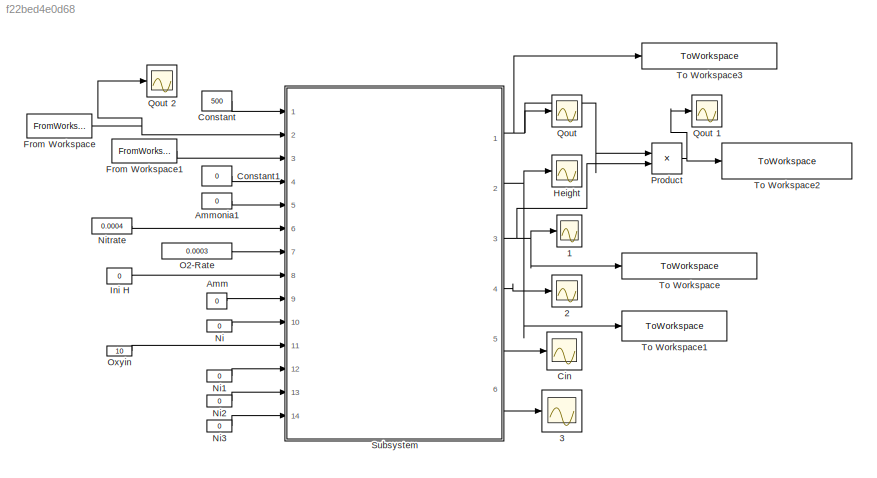
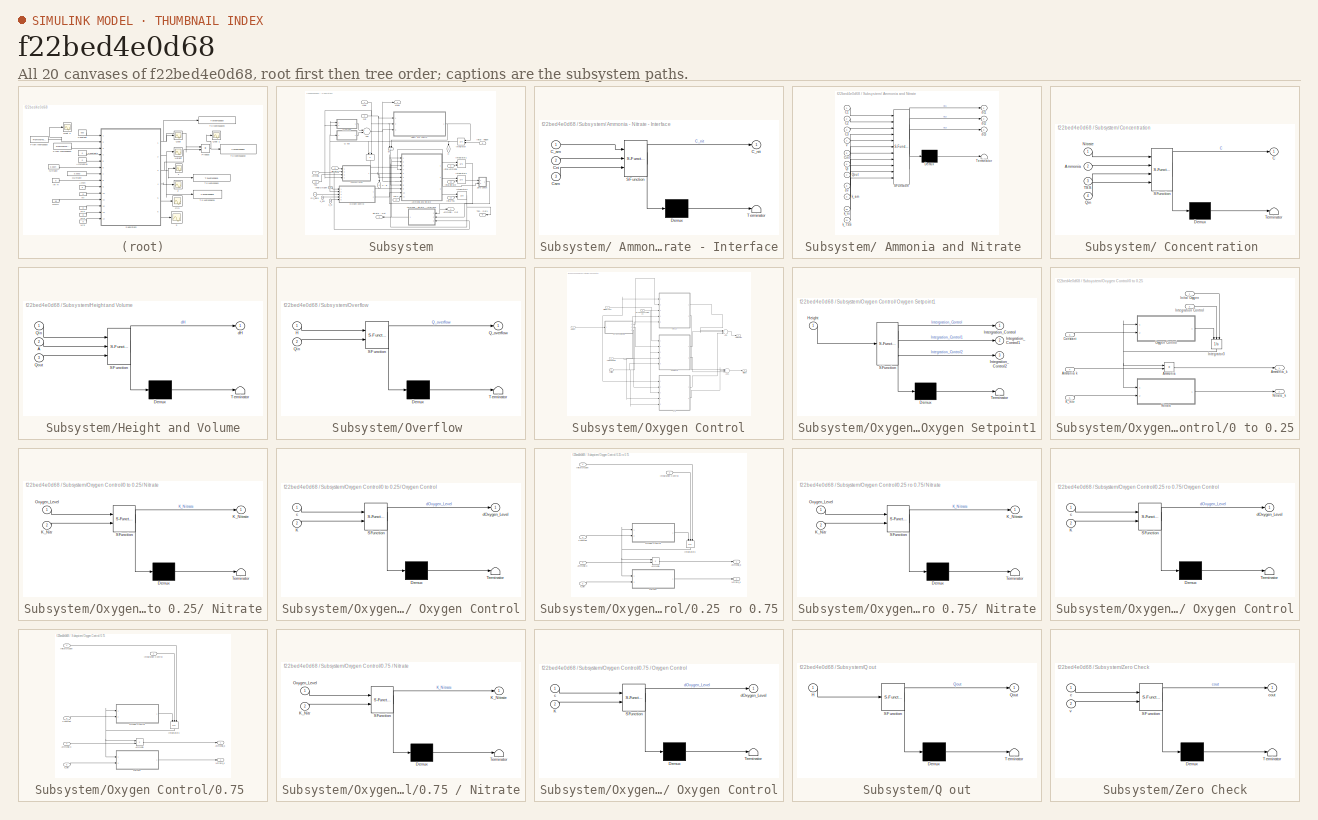
[diagram: thumbnail index - all 20 canvases of the model, root first then tree order]
MODEL slx_f22bed4e0d68
KIND model
CONFIG AbsTol = auto
CONFIG FixedStep = 1
CONFIG MaxStep = auto
CONFIG MinStep = auto
CONFIG RelTol = 1e-3
CONFIG SampleTimeConstraint = Unconstrained
CONFIG Solver = ode8
CONFIG SolverMode = Auto
CONFIG SolverName = ode8
CONFIG StartTime = 0.0
CONFIG StopTime = 800
BLOCK [Constant]  Amm
  Value = 0
BLOCK [Scope] 1
  Ports = [1]
  ScopeSpecificationString = Simulink.scopes.TimeScopeBlockCfg('CurrentConfiguration', extmgr.ConfigurationSet(extmgr.Configuration('Core','General UI',true),extmgr.Configuration('Core','Source UI',true),extmgr.Configuration('Sources','WiredSimulink',true,'DataLoggingVariableName','ScopeData1','DataLoggingLimitDataPoints',true,'DataLoggingSaveFormat','Array','DataLoggingDecimation','1','DataLoggingDecimateData',true),extmgr.C...<+1532ch>
BLOCK [Scope] 2
  Ports = [1]
  ScopeSpecificationString = Simulink.scopes.TimeScopeBlockCfg('CurrentConfiguration', extmgr.ConfigurationSet(extmgr.Configuration('Core','General UI',true),extmgr.Configuration('Core','Source UI',true),extmgr.Configuration('Sources','WiredSimulink',true,'DataLoggingVariableName','ScopeData2','DataLoggingLimitDataPoints',true,'DataLoggingSaveFormat','Array','DataLoggingDecimation','1','DataLoggingDecimateData',true),extmgr.C...<+1518ch>
BLOCK [Scope] 3
  Ports = [1]
  ScopeSpecificationString = Simulink.scopes.TimeScopeBlockCfg('CurrentConfiguration', extmgr.ConfigurationSet(extmgr.Configuration('Core','General UI',true),extmgr.Configuration('Core','Source UI',true),extmgr.Configuration('Sources','WiredSimulink',true,'DataLoggingVariableName','ScopeData1','DataLoggingLimitDataPoints',true,'DataLoggingSaveFormat','Array','DataLoggingDecimation','1','DataLoggingDecimateData',true),extmgr.C...<+1522ch>
BLOCK [Constant] Ammonia1
  Value = 0
BLOCK [Scope] Cin
  Ports = [1]
  ScopeSpecificationString = Simulink.scopes.TimeScopeBlockCfg('CurrentConfiguration', extmgr.ConfigurationSet(extmgr.Configuration('Core','General UI',true),extmgr.Configuration('Core','Source UI',true),extmgr.Configuration('Sources','WiredSimulink',true,'DataLoggingVariableName','ScopeData6'),extmgr.Configuration('Visuals','Time Domain',true,'SerializedDisplays',{struct('MinYLimReal','-1.39343','MaxYLimReal','12.54084','YLa...<+1460ch>
BLOCK [Constant] Constant
  Value = 500
BLOCK [Constant] Constant1
  Value = 0
BLOCK [FromWorkspace] From Workspace
  SampleTime = 0
  VariableName = Flow
  ZeroCross = on
BLOCK [FromWorkspace] From Workspace1
  SampleTime = 0
  VariableName = Pollutant
  ZeroCross = on
BLOCK [Scope] Height
  Ports = [1]
  ScopeSpecificationString = Simulink.scopes.TimeScopeBlockCfg('CurrentConfiguration', extmgr.ConfigurationSet(extmgr.Configuration('Core','General UI',true),extmgr.Configuration('Core','Source UI',true),extmgr.Configuration('Sources','WiredSimulink',true,'DataLoggingVariableName','ScopeData3','DataLoggingLimitDataPoints',true,'DataLoggingSaveFormat','Array','DataLoggingDecimation','1','DataLoggingDecimateData',true),extmgr.C...<+1521ch>
BLOCK [Constant] Ini H 
  Value = 0
BLOCK [Constant] Ni
  Value = 0
BLOCK [Constant] Ni1
  Value = 0
BLOCK [Constant] Ni2
  Value = 0
BLOCK [Constant] Ni3
  Value = 0
BLOCK [Constant] Nitrate 
  Value = 0.0004
BLOCK [Constant] O2-Rate
  Value = 0.0003
BLOCK [Constant] Oxyin 
  Value = 10
BLOCK [Product] Product
  InputSameDT = off
  OutDataTypeStr = Inherit: Inherit via internal rule
  Ports = [2, 1]
  RndMeth = Floor
  SaturateOnIntegerOverflow = off
BLOCK [Scope] Qout 
  Ports = [1]
  ScopeSpecificationString = Simulink.scopes.TimeScopeBlockCfg('CurrentConfiguration', extmgr.ConfigurationSet(extmgr.Configuration('Core','General UI',true),extmgr.Configuration('Core','Source UI',true),extmgr.Configuration('Sources','WiredSimulink',true,'DataLoggingVariableName','ScopeData2','DataLoggingLimitDataPoints',true,'DataLoggingSaveFormat','Array','DataLoggingDecimation','1','DataLoggingDecimateData',true),extmgr.C...<+1503ch>
BLOCK [Scope] Qout 1
  Ports = [1]
  ScopeSpecificationString = Simulink.scopes.TimeScopeBlockCfg('CurrentConfiguration', extmgr.ConfigurationSet(extmgr.Configuration('Core','General UI',true),extmgr.Configuration('Core','Source UI',true),extmgr.Configuration('Sources','WiredSimulink',true,'DataLoggingVariableName','ScopeData1','DataLoggingLimitDataPoints',true,'DataLoggingSaveFormat','Array','DataLoggingDecimation','1','DataLoggingDecimateData',true),extmgr.C...<+1519ch>
BLOCK [Scope] Qout 2
  Ports = [1]
  ScopeSpecificationString = Simulink.scopes.TimeScopeBlockCfg('CurrentConfiguration', extmgr.ConfigurationSet(extmgr.Configuration('Core','General UI',true),extmgr.Configuration('Core','Source UI',true),extmgr.Configuration('Sources','WiredSimulink',true,'DataLoggingVariableName','ScopeData1','DataLoggingLimitDataPoints',true,'DataLoggingSaveFormat','Array','DataLoggingDecimation','1','DataLoggingDecimateData',true),extmgr.C...<+1526ch>
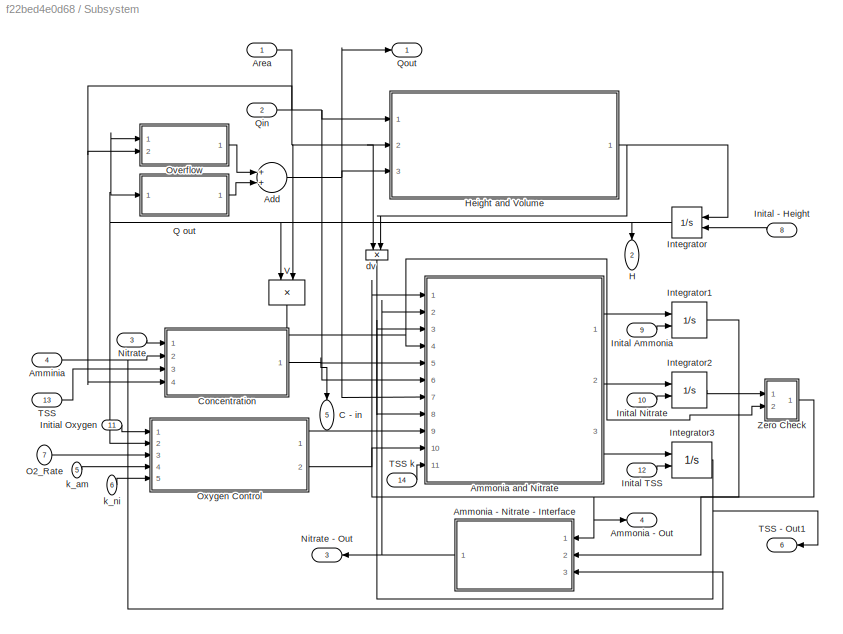
BLOCK [SubSystem] Subsystem
  Ports = [14, 6]
  RequestExecContextInheritance = off
  Variant = off
BLOCK [SubSystem] Subsystem/ Ammonia - Nitrate - Interface
  ErrorFcn = Stateflow.Translate.translate
  PermitHierarchicalResolution = ExplicitOnly
  Ports = [3, 1]
  RequestExecContextInheritance = off
  SFBlockType = MATLAB Function
  TreatAsAtomicUnit = on
  Variant = off
BLOCK [Demux] Subsystem/ Ammonia - Nitrate - Interface/ Demux 
  Outputs = 1
  Ports = [1, 1]
BLOCK [S-Function] Subsystem/ Ammonia - Nitrate - Interface/ SFunction 
  EnableBusSupport = on
  FunctionName = sf_sfun
  PortCounts = [3 2]
  Ports = [3, 2]
  SFunctionDeploymentMode = off
  Tag = Stateflow S-Function Local_Partialcontrol 4
BLOCK [Terminator] Subsystem/ Ammonia - Nitrate - Interface/ Terminator 
BLOCK [Inport] Subsystem/ Ammonia - Nitrate - Interface/C_am
  IconDisplay = Port number
BLOCK [Outport] Subsystem/ Ammonia - Nitrate - Interface/C_nit
  IconDisplay = Port number
BLOCK [Inport] Subsystem/ Ammonia - Nitrate - Interface/Cam
  IconDisplay = Port number
  Port = 3
BLOCK [Inport] Subsystem/ Ammonia - Nitrate - Interface/Cni
  IconDisplay = Port number
  Port = 2
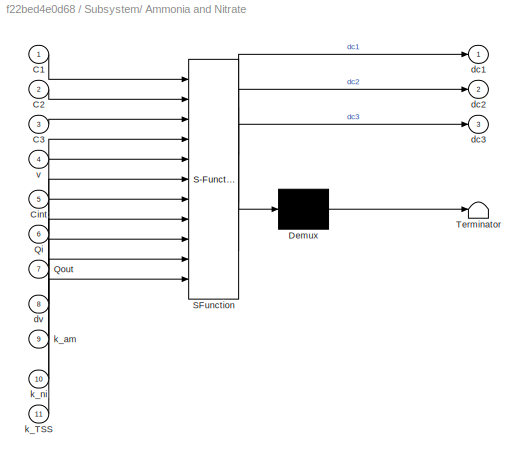
BLOCK [SubSystem] Subsystem/ Ammonia and Nitrate 
  ErrorFcn = Stateflow.Translate.translate
  PermitHierarchicalResolution = ExplicitOnly
  Ports = [11, 3]
  RequestExecContextInheritance = off
  SFBlockType = MATLAB Function
  TreatAsAtomicUnit = on
  Variant = off
BLOCK [Demux] Subsystem/ Ammonia and Nitrate / Demux 
  Outputs = 1
  Ports = [1, 1]
BLOCK [S-Function] Subsystem/ Ammonia and Nitrate / SFunction 
  EnableBusSupport = on
  FunctionName = sf_sfun
  PortCounts = [11 4]
  Ports = [11, 4]
  SFunctionDeploymentMode = off
  Tag = Stateflow S-Function Local_Partialcontrol 14
BLOCK [Terminator] Subsystem/ Ammonia and Nitrate / Terminator 
BLOCK [Inport] Subsystem/ Ammonia and Nitrate /C1
  IconDisplay = Port number
BLOCK [Inport] Subsystem/ Ammonia and Nitrate /C2
  IconDisplay = Port number
  Port = 2
BLOCK [Inport] Subsystem/ Ammonia and Nitrate /C3
  IconDisplay = Port number
  Port = 3
BLOCK [Inport] Subsystem/ Ammonia and Nitrate /Cint
  IconDisplay = Port number
  Port = 5
BLOCK [Inport] Subsystem/ Ammonia and Nitrate /Qi
  IconDisplay = Port number
  Port = 6
BLOCK [Inport] Subsystem/ Ammonia and Nitrate /Qout
  IconDisplay = Port number
  Port = 7
BLOCK [Outport] Subsystem/ Ammonia and Nitrate /dc1
  IconDisplay = Port number
BLOCK [Outport] Subsystem/ Ammonia and Nitrate /dc2
  IconDisplay = Port number
  Port = 2
BLOCK [Outport] Subsystem/ Ammonia and Nitrate /dc3
  IconDisplay = Port number
  Port = 3
BLOCK [Inport] Subsystem/ Ammonia and Nitrate /dv
  IconDisplay = Port number
  Port = 8
BLOCK [Inport] Subsystem/ Ammonia and Nitrate /k_TSS
  IconDisplay = Port number
  Port = 11
BLOCK [Inport] Subsystem/ Ammonia and Nitrate /k_am
  IconDisplay = Port number
  Port = 9
BLOCK [Inport] Subsystem/ Ammonia and Nitrate /k_ni
  IconDisplay = Port number
  Port = 10
BLOCK [Inport] Subsystem/ Ammonia and Nitrate /v
  IconDisplay = Port number
  Port = 4
BLOCK [SubSystem] Subsystem/ Concentration 
  ErrorFcn = Stateflow.Translate.translate
  PermitHierarchicalResolution = ExplicitOnly
  Ports = [4, 1]
  RequestExecContextInheritance = off
  SFBlockType = MATLAB Function
  TreatAsAtomicUnit = on
  Variant = off
BLOCK [Demux] Subsystem/ Concentration / Demux 
  Outputs = 1
  Ports = [1, 1]
BLOCK [S-Function] Subsystem/ Concentration / SFunction 
  EnableBusSupport = on
  FunctionName = sf_sfun
  PortCounts = [4 2]
  Ports = [4, 2]
  SFunctionDeploymentMode = off
  Tag = Stateflow S-Function Local_Partialcontrol 5
BLOCK [Terminator] Subsystem/ Concentration / Terminator 
BLOCK [Inport] Subsystem/ Concentration /Ammonia
  IconDisplay = Port number
  Port = 2
BLOCK [Outport] Subsystem/ Concentration /C
  IconDisplay = Port number
BLOCK [Inport] Subsystem/ Concentration /Nitrate
  IconDisplay = Port number
BLOCK [Inport] Subsystem/ Concentration /Qin
  IconDisplay = Port number
  Port = 4
BLOCK [Inport] Subsystem/ Concentration /TSS
  IconDisplay = Port number
  Port = 3
BLOCK [Sum] Subsystem/Add
  InputSameDT = off
  OutDataTypeStr = Inherit: Inherit via internal rule
  Ports = [2, 1]
  SaturateOnIntegerOverflow = off
BLOCK [Inport] Subsystem/Amminia
  IconDisplay = Port number
  Port = 4
BLOCK [Outport] Subsystem/Ammonia - Out
  IconDisplay = Port number
  Port = 4
BLOCK [Inport] Subsystem/Area
  IconDisplay = Port number
BLOCK [Outport] Subsystem/C - in 
  IconDisplay = Port number
  Port = 5
BLOCK [Outport] Subsystem/H
  IconDisplay = Port number
  Port = 2
BLOCK [SubSystem] Subsystem/Height and Volume
  ErrorFcn = Stateflow.Translate.translate
  PermitHierarchicalResolution = ExplicitOnly
  Ports = [3, 1]
  RequestExecContextInheritance = off
  SFBlockType = MATLAB Function
  TreatAsAtomicUnit = on
  Variant = off
BLOCK [Demux] Subsystem/Height and Volume/ Demux 
  Outputs = 1
  Ports = [1, 1]
BLOCK [S-Function] Subsystem/Height and Volume/ SFunction 
  EnableBusSupport = on
  FunctionName = sf_sfun
  PortCounts = [3 2]
  Ports = [3, 2]
  SFunctionDeploymentMode = off
  Tag = Stateflow S-Function Local_Partialcontrol 16
BLOCK [Terminator] Subsystem/Height and Volume/ Terminator 
BLOCK [Inport] Subsystem/Height and Volume/A
  IconDisplay = Port number
  Port = 2
BLOCK [Inport] Subsystem/Height and Volume/Qin
  IconDisplay = Port number
BLOCK [Inport] Subsystem/Height and Volume/Qout
  IconDisplay = Port number
  Port = 3
BLOCK [Outport] Subsystem/Height and Volume/dH
  IconDisplay = Port number
BLOCK [Inport] Subsystem/Inital - Height
  IconDisplay = Port number
  Port = 8
BLOCK [Inport] Subsystem/Inital Ammonia
  IconDisplay = Port number
  Port = 9
BLOCK [Inport] Subsystem/Inital Nitrate
  IconDisplay = Port number
  Port = 10
BLOCK [Inport] Subsystem/Inital TSS
  IconDisplay = Port number
  Port = 12
BLOCK [Inport] Subsystem/Initial Oxygen
  IconDisplay = Port number
  Port = 11
BLOCK [Integrator] Subsystem/Integrator
  InitialCondition = 10
  InitialConditionSource = external
  LimitOutput = on
  LowerSaturationLimit = 0
  Ports = [2, 1]
BLOCK [Integrator] Subsystem/Integrator1
  InitialConditionSource = external
  LimitOutput = on
  LowerSaturationLimit = 0
  Ports = [2, 1]
BLOCK [Integrator] Subsystem/Integrator2
  InitialConditionSource = external
  LimitOutput = on
  LowerSaturationLimit = 0
  Ports = [2, 1]
BLOCK [Integrator] Subsystem/Integrator3
  InitialConditionSource = external
  LimitOutput = on
  LowerSaturationLimit = 0
  Ports = [2, 1]
BLOCK [Inport] Subsystem/Nitrate
  IconDisplay = Port number
  Port = 3
BLOCK [Outport] Subsystem/Nitrate - Out
  IconDisplay = Port number
  Port = 3
BLOCK [Inport] Subsystem/O2_Rate 
  IconDisplay = Port number
  Port = 7
BLOCK [SubSystem] Subsystem/Overflow 
  ErrorFcn = Stateflow.Translate.translate
  PermitHierarchicalResolution = ExplicitOnly
  Ports = [2, 1]
  RequestExecContextInheritance = off
  SFBlockType = MATLAB Function
  TreatAsAtomicUnit = on
  Variant = off
BLOCK [Demux] Subsystem/Overflow / Demux 
  Outputs = 1
  Ports = [1, 1]
BLOCK [S-Function] Subsystem/Overflow / SFunction 
  EnableBusSupport = on
  FunctionName = sf_sfun
  PortCounts = [2 2]
  Ports = [2, 2]
  SFunctionDeploymentMode = off
  Tag = Stateflow S-Function Local_Partialcontrol 7
BLOCK [Terminator] Subsystem/Overflow / Terminator 
BLOCK [Inport] Subsystem/Overflow /H
  IconDisplay = Port number
BLOCK [Outport] Subsystem/Overflow /Q_overflow
  IconDisplay = Port number
BLOCK [Inport] Subsystem/Overflow /Qin
  IconDisplay = Port number
  Port = 2
BLOCK [SubSystem] Subsystem/Oxygen Control
  Ports = [5, 2]
  RequestExecContextInheritance = off
  Variant = off
BLOCK [SubSystem] Subsystem/Oxygen Control/ Oxygen Setpoint1
  ErrorFcn = Stateflow.Translate.translate
  PermitHierarchicalResolution = ExplicitOnly
  Ports = [1, 3]
  RequestExecContextInheritance = off
  SFBlockType = MATLAB Function
  TreatAsAtomicUnit = on
  Variant = off
BLOCK [Demux] Subsystem/Oxygen Control/ Oxygen Setpoint1/ Demux 
  Outputs = 1
  Ports = [1, 1]
BLOCK [S-Function] Subsystem/Oxygen Control/ Oxygen Setpoint1/ SFunction 
  EnableBusSupport = on
  FunctionName = sf_sfun
  PortCounts = [1 4]
  Ports = [1, 4]
  SFunctionDeploymentMode = off
  Tag = Stateflow S-Function Local_Partialcontrol 8
BLOCK [Terminator] Subsystem/Oxygen Control/ Oxygen Setpoint1/ Terminator 
BLOCK [Inport] Subsystem/Oxygen Control/ Oxygen Setpoint1/Height
  IconDisplay = Port number
BLOCK [Outport] Subsystem/Oxygen Control/ Oxygen Setpoint1/Integration_Control1
  IconDisplay = Port number
  Port = 2
BLOCK [Outport] Subsystem/Oxygen Control/ Oxygen Setpoint1/Integration_Control2
  IconDisplay = Port number
  Port = 3
BLOCK [Outport] Subsystem/Oxygen Control/ Oxygen Setpoint1/Intergration_Control
  IconDisplay = Port number
BLOCK [SubSystem] Subsystem/Oxygen Control/0 to 0.25
  Ports = [5, 2]
  RequestExecContextInheritance = off
  Variant = off
BLOCK [SubSystem] Subsystem/Oxygen Control/0 to 0.25/ Nitrate
  ErrorFcn = Stateflow.Translate.translate
  PermitHierarchicalResolution = ExplicitOnly
  Ports = [2, 1]
  RequestExecContextInheritance = off
  SFBlockType = MATLAB Function
  TreatAsAtomicUnit = on
  Variant = off
BLOCK [Demux] Subsystem/Oxygen Control/0 to 0.25/ Nitrate/ Demux 
  Outputs = 1
  Ports = [1, 1]
BLOCK [S-Function] Subsystem/Oxygen Control/0 to 0.25/ Nitrate/ SFunction 
  EnableBusSupport = on
  FunctionName = sf_sfun
  PortCounts = [2 2]
  Ports = [2, 2]
  SFunctionDeploymentMode = off
  Tag = Stateflow S-Function Local_Partialcontrol 9
BLOCK [Terminator] Subsystem/Oxygen Control/0 to 0.25/ Nitrate/ Terminator 
BLOCK [Inport] Subsystem/Oxygen Control/0 to 0.25/ Nitrate/K_Nitr
  IconDisplay = Port number
  Port = 2
BLOCK [Outport] Subsystem/Oxygen Control/0 to 0.25/ Nitrate/K_Nitrate
  IconDisplay = Port number
BLOCK [Inport] Subsystem/Oxygen Control/0 to 0.25/ Nitrate/Oxygen_Level
  IconDisplay = Port number
BLOCK [SubSystem] Subsystem/Oxygen Control/0 to 0.25/ Oxygen Control
  ErrorFcn = Stateflow.Translate.translate
  PermitHierarchicalResolution = ExplicitOnly
  Ports = [2, 1]
  RequestExecContextInheritance = off
  SFBlockType = MATLAB Function
  TreatAsAtomicUnit = on
  Variant = off
BLOCK [Demux] Subsystem/Oxygen Control/0 to 0.25/ Oxygen Control/ Demux 
  Outputs = 1
  Ports = [1, 1]
BLOCK [S-Function] Subsystem/Oxygen Control/0 to 0.25/ Oxygen Control/ SFunction 
  EnableBusSupport = on
  FunctionName = sf_sfun
  PortCounts = [2 2]
  Ports = [2, 2]
  SFunctionDeploymentMode = off
  Tag = Stateflow S-Function Local_Partialcontrol 10
BLOCK [Terminator] Subsystem/Oxygen Control/0 to 0.25/ Oxygen Control/ Terminator 
BLOCK [Inport] Subsystem/Oxygen Control/0 to 0.25/ Oxygen Control/K
  IconDisplay = Port number
  Port = 2
BLOCK [Inport] Subsystem/Oxygen Control/0 to 0.25/ Oxygen Control/c
  IconDisplay = Port number
BLOCK [Outport] Subsystem/Oxygen Control/0 to 0.25/ Oxygen Control/dOxygen_Level
  IconDisplay = Port number
BLOCK [Product] Subsystem/Oxygen Control/0 to 0.25/Ammonia
  InputSameDT = off
  OutDataTypeStr = Inherit: Inherit via internal rule
  Ports = [2, 1]
  RndMeth = Floor
  SaturateOnIntegerOverflow = off
BLOCK [Inport] Subsystem/Oxygen Control/0 to 0.25/Ammonia k
  IconDisplay = Port number
  Port = 4
BLOCK [Outport] Subsystem/Oxygen Control/0 to 0.25/Ammonia_k
  IconDisplay = Port number
BLOCK [Inport] Subsystem/Oxygen Control/0 to 0.25/Constant
  IconDisplay = Port number
  Port = 3
BLOCK [Inport] Subsystem/Oxygen Control/0 to 0.25/Inital Oxygen
  IconDisplay = Port number
BLOCK [Inport] Subsystem/Oxygen Control/0 to 0.25/Integration Control
  IconDisplay = Port number
  Port = 2
BLOCK [Integrator] Subsystem/Oxygen Control/0 to 0.25/Integrator3
  ExternalReset = level hold
  InitialCondition = 10
  InitialConditionSource = external
  Ports = [3, 1]
BLOCK [Inport] Subsystem/Oxygen Control/0 to 0.25/K_nitr
  IconDisplay = Port number
  Port = 5
BLOCK [Outport] Subsystem/Oxygen Control/0 to 0.25/Nitrate_k 
  IconDisplay = Port number
  Port = 2
BLOCK [SubSystem] Subsystem/Oxygen Control/0.25 ro 0.75
  Ports = [5, 2]
  RequestExecContextInheritance = off
  Variant = off
BLOCK [SubSystem] Subsystem/Oxygen Control/0.25 ro 0.75/ Nitrate
  ErrorFcn = Stateflow.Translate.translate
  PermitHierarchicalResolution = ExplicitOnly
  Ports = [2, 1]
  RequestExecContextInheritance = off
  SFBlockType = MATLAB Function
  TreatAsAtomicUnit = on
  Variant = off
BLOCK [Demux] Subsystem/Oxygen Control/0.25 ro 0.75/ Nitrate/ Demux 
  Outputs = 1
  Ports = [1, 1]
BLOCK [S-Function] Subsystem/Oxygen Control/0.25 ro 0.75/ Nitrate/ SFunction 
  EnableBusSupport = on
  FunctionName = sf_sfun
  PortCounts = [2 2]
  Ports = [2, 2]
  SFunctionDeploymentMode = off
  Tag = Stateflow S-Function Local_Partialcontrol 11
BLOCK [Terminator] Subsystem/Oxygen Control/0.25 ro 0.75/ Nitrate/ Terminator 
BLOCK [Inport] Subsystem/Oxygen Control/0.25 ro 0.75/ Nitrate/K_Nitr
  IconDisplay = Port number
  Port = 2
BLOCK [Outport] Subsystem/Oxygen Control/0.25 ro 0.75/ Nitrate/K_Nitrate
  IconDisplay = Port number
BLOCK [Inport] Subsystem/Oxygen Control/0.25 ro 0.75/ Nitrate/Oxygen_Level
  IconDisplay = Port number
BLOCK [SubSystem] Subsystem/Oxygen Control/0.25 ro 0.75/ Oxygen Control
  ErrorFcn = Stateflow.Translate.translate
  PermitHierarchicalResolution = ExplicitOnly
  Ports = [2, 1]
  RequestExecContextInheritance = off
  SFBlockType = MATLAB Function
  TreatAsAtomicUnit = on
  Variant = off
BLOCK [Demux] Subsystem/Oxygen Control/0.25 ro 0.75/ Oxygen Control/ Demux 
  Outputs = 1
  Ports = [1, 1]
BLOCK [S-Function] Subsystem/Oxygen Control/0.25 ro 0.75/ Oxygen Control/ SFunction 
  EnableBusSupport = on
  FunctionName = sf_sfun
  PortCounts = [2 2]
  Ports = [2, 2]
  SFunctionDeploymentMode = off
  Tag = Stateflow S-Function Local_Partialcontrol 12
BLOCK [Terminator] Subsystem/Oxygen Control/0.25 ro 0.75/ Oxygen Control/ Terminator 
BLOCK [Inport] Subsystem/Oxygen Control/0.25 ro 0.75/ Oxygen Control/K
  IconDisplay = Port number
  Port = 2
BLOCK [Inport] Subsystem/Oxygen Control/0.25 ro 0.75/ Oxygen Control/c
  IconDisplay = Port number
BLOCK [Outport] Subsystem/Oxygen Control/0.25 ro 0.75/ Oxygen Control/dOxygen_Level
  IconDisplay = Port number
BLOCK [Product] Subsystem/Oxygen Control/0.25 ro 0.75/Ammonia
  InputSameDT = off
  OutDataTypeStr = Inherit: Inherit via internal rule
  Ports = [2, 1]
  RndMeth = Floor
  SaturateOnIntegerOverflow = off
BLOCK [Inport] Subsystem/Oxygen Control/0.25 ro 0.75/Ammonia k
  IconDisplay = Port number
  Port = 4
BLOCK [Outport] Subsystem/Oxygen Control/0.25 ro 0.75/Ammonia_k
  IconDisplay = Port number
BLOCK [Inport] Subsystem/Oxygen Control/0.25 ro 0.75/Constant
  IconDisplay = Port number
  Port = 3
BLOCK [Inport] Subsystem/Oxygen Control/0.25 ro 0.75/Inital Oxygen
  IconDisplay = Port number
BLOCK [Inport] Subsystem/Oxygen Control/0.25 ro 0.75/Integration Control
  IconDisplay = Port number
  Port = 2
BLOCK [Integrator] Subsystem/Oxygen Control/0.25 ro 0.75/Integrator3
  ExternalReset = level hold
  InitialCondition = 10
  InitialConditionSource = external
  Ports = [3, 1]
BLOCK [Inport] Subsystem/Oxygen Control/0.25 ro 0.75/K_nitr
  IconDisplay = Port number
  Port = 5
BLOCK [Outport] Subsystem/Oxygen Control/0.25 ro 0.75/Nitrate_k 
  IconDisplay = Port number
  Port = 2
BLOCK [SubSystem] Subsystem/Oxygen Control/0.75 
  Ports = [5, 2]
  RequestExecContextInheritance = off
  Variant = off
BLOCK [SubSystem] Subsystem/Oxygen Control/0.75 / Nitrate
  ErrorFcn = Stateflow.Translate.translate
  PermitHierarchicalResolution = ExplicitOnly
  Ports = [2, 1]
  RequestExecContextInheritance = off
  SFBlockType = MATLAB Function
  TreatAsAtomicUnit = on
  Variant = off
BLOCK [Demux] Subsystem/Oxygen Control/0.75 / Nitrate/ Demux 
  Outputs = 1
  Ports = [1, 1]
BLOCK [S-Function] Subsystem/Oxygen Control/0.75 / Nitrate/ SFunction 
  EnableBusSupport = on
  FunctionName = sf_sfun
  PortCounts = [2 2]
  Ports = [2, 2]
  SFunctionDeploymentMode = off
  Tag = Stateflow S-Function Local_Partialcontrol 13
BLOCK [Terminator] Subsystem/Oxygen Control/0.75 / Nitrate/ Terminator 
BLOCK [Inport] Subsystem/Oxygen Control/0.75 / Nitrate/K_Nitr
  IconDisplay = Port number
  Port = 2
BLOCK [Outport] Subsystem/Oxygen Control/0.75 / Nitrate/K_Nitrate
  IconDisplay = Port number
BLOCK [Inport] Subsystem/Oxygen Control/0.75 / Nitrate/Oxygen_Level
  IconDisplay = Port number
BLOCK [SubSystem] Subsystem/Oxygen Control/0.75 / Oxygen Control
  ErrorFcn = Stateflow.Translate.translate
  PermitHierarchicalResolution = ExplicitOnly
  Ports = [2, 1]
  RequestExecContextInheritance = off
  SFBlockType = MATLAB Function
  TreatAsAtomicUnit = on
  Variant = off
BLOCK [Demux] Subsystem/Oxygen Control/0.75 / Oxygen Control/ Demux 
  Outputs = 1
  Ports = [1, 1]
BLOCK [S-Function] Subsystem/Oxygen Control/0.75 / Oxygen Control/ SFunction 
  EnableBusSupport = on
  FunctionName = sf_sfun
  PortCounts = [2 2]
  Ports = [2, 2]
  SFunctionDeploymentMode = off
  Tag = Stateflow S-Function Local_Partialcontrol 15
BLOCK [Terminator] Subsystem/Oxygen Control/0.75 / Oxygen Control/ Terminator 
BLOCK [Inport] Subsystem/Oxygen Control/0.75 / Oxygen Control/K
  IconDisplay = Port number
  Port = 2
BLOCK [Inport] Subsystem/Oxygen Control/0.75 / Oxygen Control/c
  IconDisplay = Port number
BLOCK [Outport] Subsystem/Oxygen Control/0.75 / Oxygen Control/dOxygen_Level
  IconDisplay = Port number
BLOCK [Product] Subsystem/Oxygen Control/0.75 /Ammonia
  InputSameDT = off
  OutDataTypeStr = Inherit: Inherit via internal rule
  Ports = [2, 1]
  RndMeth = Floor
  SaturateOnIntegerOverflow = off
BLOCK [Inport] Subsystem/Oxygen Control/0.75 /Ammonia k
  IconDisplay = Port number
  Port = 4
BLOCK [Outport] Subsystem/Oxygen Control/0.75 /Ammonia_k
  IconDisplay = Port number
BLOCK [Inport] Subsystem/Oxygen Control/0.75 /Constant
  IconDisplay = Port number
  Port = 3
BLOCK [Inport] Subsystem/Oxygen Control/0.75 /Inital Oxygen
  IconDisplay = Port number
BLOCK [Inport] Subsystem/Oxygen Control/0.75 /Integration Control
  IconDisplay = Port number
  Port = 2
BLOCK [Integrator] Subsystem/Oxygen Control/0.75 /Integrator3
  ExternalReset = level hold
  InitialCondition = 10
  InitialConditionSource = external
  Ports = [3, 1]
BLOCK [Inport] Subsystem/Oxygen Control/0.75 /K_nitr
  IconDisplay = Port number
  Port = 5
BLOCK [Outport] Subsystem/Oxygen Control/0.75 /Nitrate_k 
  IconDisplay = Port number
  Port = 2
BLOCK [Sum] Subsystem/Oxygen Control/Add
  InputSameDT = off
  Inputs = 3
  OutDataTypeStr = Inherit: Inherit via internal rule
  Ports = [3, 1]
  SaturateOnIntegerOverflow = off
BLOCK [Sum] Subsystem/Oxygen Control/Add1
  InputSameDT = off
  Inputs = 3
  OutDataTypeStr = Inherit: Inherit via internal rule
  Ports = [3, 1]
  SaturateOnIntegerOverflow = off
BLOCK [Outport] Subsystem/Oxygen Control/Ammonia K
  IconDisplay = Port number
BLOCK [Inport] Subsystem/Oxygen Control/Ammonia Rate 
  IconDisplay = Port number
  Port = 4
BLOCK [Inport] Subsystem/Oxygen Control/Height
  IconDisplay = Port number
  Port = 2
BLOCK [Inport] Subsystem/Oxygen Control/Initial Oxygen
  IconDisplay = Port number
BLOCK [Inport] Subsystem/Oxygen Control/K - Nitrate
  IconDisplay = Port number
  Port = 5
BLOCK [Outport] Subsystem/Oxygen Control/Nitrate K
  IconDisplay = Port number
  Port = 2
BLOCK [Inport] Subsystem/Oxygen Control/Oxygen Consumption
  IconDisplay = Port number
  Port = 3
BLOCK [SubSystem] Subsystem/Q out
  ErrorFcn = Stateflow.Translate.translate
  PermitHierarchicalResolution = ExplicitOnly
  Ports = [1, 1]
  RequestExecContextInheritance = off
  SFBlockType = MATLAB Function
  TreatAsAtomicUnit = on
  Variant = off
BLOCK [Demux] Subsystem/Q out/ Demux 
  Outputs = 1
  Ports = [1, 1]
BLOCK [S-Function] Subsystem/Q out/ SFunction 
  EnableBusSupport = on
  FunctionName = sf_sfun
  PortCounts = [1 2]
  Ports = [1, 2]
  SFunctionDeploymentMode = off
  Tag = Stateflow S-Function Local_Partialcontrol 2
BLOCK [Terminator] Subsystem/Q out/ Terminator 
BLOCK [Inport] Subsystem/Q out/H
  IconDisplay = Port number
BLOCK [Outport] Subsystem/Q out/Qout
  IconDisplay = Port number
BLOCK [Inport] Subsystem/Qin
  IconDisplay = Port number
  Port = 2
BLOCK [Outport] Subsystem/Qout
  IconDisplay = Port number
BLOCK [Inport] Subsystem/TSS
  IconDisplay = Port number
  Port = 13
BLOCK [Outport] Subsystem/TSS - Out1
  IconDisplay = Port number
  Port = 6
BLOCK [Inport] Subsystem/TSS k 
  IconDisplay = Port number
  Port = 14
BLOCK [Product] Subsystem/V
  InputSameDT = off
  OutDataTypeStr = Inherit: Inherit via internal rule
  Ports = [2, 1]
  RndMeth = Floor
  SaturateOnIntegerOverflow = off
BLOCK [SubSystem] Subsystem/Zero Check
  ErrorFcn = Stateflow.Translate.translate
  PermitHierarchicalResolution = ExplicitOnly
  Ports = [2, 1]
  RequestExecContextInheritance = off
  SFBlockType = MATLAB Function
  TreatAsAtomicUnit = on
  Variant = off
BLOCK [Demux] Subsystem/Zero Check/ Demux 
  Outputs = 1
  Ports = [1, 1]
BLOCK [S-Function] Subsystem/Zero Check/ SFunction 
  EnableBusSupport = on
  FunctionName = sf_sfun
  PortCounts = [2 2]
  Ports = [2, 2]
  SFunctionDeploymentMode = off
  Tag = Stateflow S-Function Local_Partialcontrol 1
BLOCK [Terminator] Subsystem/Zero Check/ Terminator 
BLOCK [Inport] Subsystem/Zero Check/c
  IconDisplay = Port number
BLOCK [Outport] Subsystem/Zero Check/cout
  IconDisplay = Port number
BLOCK [Inport] Subsystem/Zero Check/v
  IconDisplay = Port number
  Port = 2
BLOCK [Product] Subsystem/dv
  InputSameDT = off
  OutDataTypeStr = Inherit: Inherit via internal rule
  Ports = [2, 1]
  RndMeth = Floor
  SaturateOnIntegerOverflow = off
BLOCK [Inport] Subsystem/k_am
  IconDisplay = Port number
  Port = 5
BLOCK [Inport] Subsystem/k_ni
  IconDisplay = Port number
  Port = 6
BLOCK [ToWorkspace] To Workspace
  FixptAsFi = on
  MaxDataPoints = inf
  Ports = [1]
  SampleTime = -1
  Save2DSignal = 2-D array (concatenate along first dimension)
  VariableName = Local_nocontrol_Concentration_0
BLOCK [ToWorkspace] To Workspace1
  FixptAsFi = on
  MaxDataPoints = inf
  Ports = [1]
  SampleTime = -1
  Save2DSignal = 2-D array (concatenate along first dimension)
  VariableName = Local_nocontrol_Height_0
BLOCK [ToWorkspace] To Workspace2
  FixptAsFi = on
  MaxDataPoints = inf
  Ports = [1]
  SampleTime = -1
  Save2DSignal = 2-D array (concatenate along first dimension)
  VariableName = Local_nocontrol_Load_0
BLOCK [ToWorkspace] To Workspace3
  FixptAsFi = on
  MaxDataPoints = inf
  Ports = [1]
  SampleTime = -1
  Save2DSignal = 2-D array (concatenate along first dimension)
  VariableName = Local_nocontrol_Discharge_O
LINE  Amm:1 -> Subsystem:9
LINE Ammonia1:1 -> Subsystem:5
LINE Constant1:1 -> Subsystem:4
LINE Constant:1 -> Subsystem:1
LINE From Workspace1:1 -> Subsystem:3
NET From Workspace:1 -> Qout 2:1, Subsystem:2
LINE Ini H :1 -> Subsystem:8
LINE Ni1:1 -> Subsystem:12
LINE Ni2:1 -> Subsystem:13
LINE Ni3:1 -> Subsystem:14
LINE Ni:1 -> Subsystem:10
LINE Nitrate :1 -> Subsystem:6
LINE O2-Rate:1 -> Subsystem:7
LINE Oxyin :1 -> Subsystem:11
NET Product:1 -> Qout 1:1, To Workspace2:1
NET Subsystem/ Ammonia - Nitrate - Interface:1 -> Subsystem/ Ammonia and Nitrate :2, Subsystem/Nitrate - Out:1
LINE Subsystem/ Ammonia and Nitrate :1 -> Subsystem/Integrator1:1
LINE Subsystem/ Ammonia and Nitrate :2 -> Subsystem/Integrator2:1
LINE Subsystem/ Ammonia and Nitrate :3 -> Subsystem/Integrator3:1
NET Subsystem/ Concentration :1 -> Subsystem/ Ammonia and Nitrate :5, Subsystem/C - in :1
NET Subsystem/Add:1 -> Subsystem/ Ammonia and Nitrate :7, Subsystem/Height and Volume:3, Subsystem/Qout:1
NET Subsystem/Amminia:1 -> Subsystem/ Ammonia - Nitrate - Interface:3, Subsystem/ Concentration :2
NET Subsystem/Area:1 -> Subsystem/Height and Volume:2, Subsystem/V:2, Subsystem/dv:1
NET Subsystem/Height and Volume:1 -> Subsystem/Integrator:1, Subsystem/dv:2
LINE Subsystem/Inital - Height:1 -> Subsystem/Integrator:2
LINE Subsystem/Inital Ammonia:1 -> Subsystem/Integrator1:2
LINE Subsystem/Inital Nitrate:1 -> Subsystem/Integrator2:2
LINE Subsystem/Inital TSS:1 -> Subsystem/Integrator3:2
LINE Subsystem/Initial Oxygen:1 -> Subsystem/Oxygen Control:1
NET Subsystem/Integrator1:1 -> Subsystem/ Ammonia - Nitrate - Interface:1, Subsystem/ Ammonia and Nitrate :1, Subsystem/Ammonia - Out:1
LINE Subsystem/Integrator2:1 -> Subsystem/Zero Check:1
NET Subsystem/Integrator3:1 -> Subsystem/ Ammonia and Nitrate :3, Subsystem/TSS - Out1:1
NET Subsystem/Integrator:1 -> Subsystem/H:1, Subsystem/Overflow :1, Subsystem/Oxygen Control:2, Subsystem/Q out:1, Subsystem/V:1
LINE Subsystem/Nitrate:1 -> Subsystem/ Concentration :1
LINE Subsystem/O2_Rate :1 -> Subsystem/Oxygen Control:3
LINE Subsystem/Overflow :1 -> Subsystem/Add:1
LINE Subsystem/Oxygen Control/ Oxygen Setpoint1:1 -> Subsystem/Oxygen Control/0 to 0.25:2
LINE Subsystem/Oxygen Control/ Oxygen Setpoint1:2 -> Subsystem/Oxygen Control/0.25 ro 0.75:2
LINE Subsystem/Oxygen Control/ Oxygen Setpoint1:3 -> Subsystem/Oxygen Control/0.75 :2
LINE Subsystem/Oxygen Control/0 to 0.25/ Nitrate:1 -> Subsystem/Oxygen Control/0 to 0.25/Nitrate_k :1
LINE Subsystem/Oxygen Control/0 to 0.25/ Oxygen Control:1 -> Subsystem/Oxygen Control/0 to 0.25/Integrator3:1
LINE Subsystem/Oxygen Control/0 to 0.25/Ammonia k:1 -> Subsystem/Oxygen Control/0 to 0.25/Ammonia:2
LINE Subsystem/Oxygen Control/0 to 0.25/Ammonia:1 -> Subsystem/Oxygen Control/0 to 0.25/Ammonia_k:1
LINE Subsystem/Oxygen Control/0 to 0.25/Constant:1 -> Subsystem/Oxygen Control/0 to 0.25/ Oxygen Control:2
LINE Subsystem/Oxygen Control/0 to 0.25/Inital Oxygen:1 -> Subsystem/Oxygen Control/0 to 0.25/Integrator3:3
LINE Subsystem/Oxygen Control/0 to 0.25/Integration Control:1 -> Subsystem/Oxygen Control/0 to 0.25/Integrator3:2
NET Subsystem/Oxygen Control/0 to 0.25/Integrator3:1 -> Subsystem/Oxygen Control/0 to 0.25/ Nitrate:1, Subsystem/Oxygen Control/0 to 0.25/ Oxygen Control:1, Subsystem/Oxygen Control/0 to 0.25/Ammonia:1
LINE Subsystem/Oxygen Control/0 to 0.25/K_nitr:1 -> Subsystem/Oxygen Control/0 to 0.25/ Nitrate:2
LINE Subsystem/Oxygen Control/0 to 0.25:1 -> Subsystem/Oxygen Control/Add:1
LINE Subsystem/Oxygen Control/0 to 0.25:2 -> Subsystem/Oxygen Control/Add1:1
LINE Subsystem/Oxygen Control/0.25 ro 0.75/ Nitrate:1 -> Subsystem/Oxygen Control/0.25 ro 0.75/Nitrate_k :1
LINE Subsystem/Oxygen Control/0.25 ro 0.75/ Oxygen Control:1 -> Subsystem/Oxygen Control/0.25 ro 0.75/Integrator3:1
LINE Subsystem/Oxygen Control/0.25 ro 0.75/Ammonia k:1 -> Subsystem/Oxygen Control/0.25 ro 0.75/Ammonia:2
LINE Subsystem/Oxygen Control/0.25 ro 0.75/Ammonia:1 -> Subsystem/Oxygen Control/0.25 ro 0.75/Ammonia_k:1
LINE Subsystem/Oxygen Control/0.25 ro 0.75/Constant:1 -> Subsystem/Oxygen Control/0.25 ro 0.75/ Oxygen Control:2
LINE Subsystem/Oxygen Control/0.25 ro 0.75/Inital Oxygen:1 -> Subsystem/Oxygen Control/0.25 ro 0.75/Integrator3:3
LINE Subsystem/Oxygen Control/0.25 ro 0.75/Integration Control:1 -> Subsystem/Oxygen Control/0.25 ro 0.75/Integrator3:2
NET Subsystem/Oxygen Control/0.25 ro 0.75/Integrator3:1 -> Subsystem/Oxygen Control/0.25 ro 0.75/ Nitrate:1, Subsystem/Oxygen Control/0.25 ro 0.75/ Oxygen Control:1, Subsystem/Oxygen Control/0.25 ro 0.75/Ammonia:1
LINE Subsystem/Oxygen Control/0.25 ro 0.75/K_nitr:1 -> Subsystem/Oxygen Control/0.25 ro 0.75/ Nitrate:2
LINE Subsystem/Oxygen Control/0.25 ro 0.75:1 -> Subsystem/Oxygen Control/Add:2
LINE Subsystem/Oxygen Control/0.25 ro 0.75:2 -> Subsystem/Oxygen Control/Add1:3
LINE Subsystem/Oxygen Control/0.75 / Nitrate:1 -> Subsystem/Oxygen Control/0.75 /Nitrate_k :1
LINE Subsystem/Oxygen Control/0.75 / Oxygen Control:1 -> Subsystem/Oxygen Control/0.75 /Integrator3:1
LINE Subsystem/Oxygen Control/0.75 /Ammonia k:1 -> Subsystem/Oxygen Control/0.75 /Ammonia:2
LINE Subsystem/Oxygen Control/0.75 /Ammonia:1 -> Subsystem/Oxygen Control/0.75 /Ammonia_k:1
LINE Subsystem/Oxygen Control/0.75 /Constant:1 -> Subsystem/Oxygen Control/0.75 / Oxygen Control:2
LINE Subsystem/Oxygen Control/0.75 /Inital Oxygen:1 -> Subsystem/Oxygen Control/0.75 /Integrator3:3
LINE Subsystem/Oxygen Control/0.75 /Integration Control:1 -> Subsystem/Oxygen Control/0.75 /Integrator3:2
NET Subsystem/Oxygen Control/0.75 /Integrator3:1 -> Subsystem/Oxygen Control/0.75 / Nitrate:1, Subsystem/Oxygen Control/0.75 / Oxygen Control:1, Subsystem/Oxygen Control/0.75 /Ammonia:1
LINE Subsystem/Oxygen Control/0.75 /K_nitr:1 -> Subsystem/Oxygen Control/0.75 / Nitrate:2
LINE Subsystem/Oxygen Control/0.75 :1 -> Subsystem/Oxygen Control/Add:3
LINE Subsystem/Oxygen Control/0.75 :2 -> Subsystem/Oxygen Control/Add1:2
LINE Subsystem/Oxygen Control/Add1:1 -> Subsystem/Oxygen Control/Nitrate K:1
LINE Subsystem/Oxygen Control/Add:1 -> Subsystem/Oxygen Control/Ammonia K:1
NET Subsystem/Oxygen Control/Ammonia Rate :1 -> Subsystem/Oxygen Control/0 to 0.25:4, Subsystem/Oxygen Control/0.25 ro 0.75:4, Subsystem/Oxygen Control/0.75 :4
LINE Subsystem/Oxygen Control/Height:1 -> Subsystem/Oxygen Control/ Oxygen Setpoint1:1
NET Subsystem/Oxygen Control/Initial Oxygen:1 -> Subsystem/Oxygen Control/0 to 0.25:1, Subsystem/Oxygen Control/0.25 ro 0.75:1, Subsystem/Oxygen Control/0.75 :1
NET Subsystem/Oxygen Control/K - Nitrate:1 -> Subsystem/Oxygen Control/0 to 0.25:5, Subsystem/Oxygen Control/0.25 ro 0.75:5, Subsystem/Oxygen Control/0.75 :5
NET Subsystem/Oxygen Control/Oxygen Consumption:1 -> Subsystem/Oxygen Control/0 to 0.25:3, Subsystem/Oxygen Control/0.25 ro 0.75:3, Subsystem/Oxygen Control/0.75 :3
LINE Subsystem/Oxygen Control:1 -> Subsystem/ Ammonia and Nitrate :9
LINE Subsystem/Oxygen Control:2 -> Subsystem/ Ammonia and Nitrate :10
LINE Subsystem/Q out:1 -> Subsystem/Add:2
NET Subsystem/Qin:1 -> Subsystem/ Ammonia and Nitrate :6, Subsystem/ Concentration :4, Subsystem/Height and Volume:1, Subsystem/Overflow :2
LINE Subsystem/TSS k :1 -> Subsystem/ Ammonia and Nitrate :11
LINE Subsystem/TSS:1 -> Subsystem/ Concentration :3
NET Subsystem/V:1 -> Subsystem/ Ammonia and Nitrate :4, Subsystem/Zero Check:2
LINE Subsystem/Zero Check:1 -> Subsystem/ Ammonia - Nitrate - Interface:2
LINE Subsystem/dv:1 -> Subsystem/ Ammonia and Nitrate :8
LINE Subsystem/k_am:1 -> Subsystem/Oxygen Control:4
LINE Subsystem/k_ni:1 -> Subsystem/Oxygen Control:5
NET Subsystem:1 -> Product:1, Qout :1, To Workspace3:1
NET Subsystem:2 -> Height:1, To Workspace1:1
NET Subsystem:3 -> 1:1, Product:2, To Workspace:1
LINE Subsystem:4 -> 2:1
LINE Subsystem:5 -> Cin:1
LINE Subsystem:6 -> 3:1
note: NET lines group one-source signal fan-out (src -> all destinations, sorted); 1:1 wires keep LINE
CHART Subsystem/Zero Check states=1 transitions=1
  STATE_LABEL 'eML_blk_kernel()'
  STATE_LABEL 'SCRIPT:\nfunction cout = zero(c,v)\n\nif v > 0\n    cout = c;\nelse\n    cout = 0;\nend\n\n'
CHART Subsystem/Q out states=1 transitions=1
  STATE_LABEL 'eML_blk_kernel()'
  STATE_LABEL 'SCRIPT:\nfunction Qout = fcn(H)\n\nif H < 1.0\n    Qout=0;\nelse\n    Qout=2.0;\nend\n\n% Pressure head determines the discharge '
CHART Subsystem/
 Ammonia - Nitrate - Interface states=1 transitions=1
  STATE_LABEL 'eML_blk_kernel()'
  STATE_LABEL 'SCRIPT:\nfunction C_nit = fcn(C_am,Cni,Cam)\nC_nit=abs(C_am- Cam)+Cni;\n\n%% Nitrate - Ammonia interface\n\n% Nitrification converts ammonia into nitrate, which at time step is added\n% to the nitrate concentration\n'
CHART Subsystem/ Concentration
 states=1 transitions=1
  STATE_LABEL 'eML_blk_kernel()'
  STATE_LABEL 'SCRIPT:\nfunction C = fcn(Nitrate,Ammonia,TSS,Qin)\n\nif Qin>0\n    C=[Ammonia; Nitrate;TSS];\nelse\n    C=[0; 0; 0];\n    \nend'
CHART Subsystem/Overflow  states=1 transitions=1
  STATE_LABEL 'eML_blk_kernel()'
  STATE_LABEL 'SCRIPT:\nfunction Q_overflow = fcn(H,Qin)\nif H>=4\n    Q_overflow=Qin;\nelse \n    Q_overflow=0;\nend\n\n%% Function Details\n% Input = Inflow, Height of the overflow wier in the pond/wetland\n% Output = Discharge from overflow weir \n'
CHART Subsystem/Oxygen Control/ Oxygen Setpoint1 states=1 transitions=1
  STATE_LABEL 'eML_blk_kernel()'
  STATE_LABEL 'SCRIPT:\nfunction [Intergration_Control,Integration_Control1,Integration_Control2] = fcn(Height)\n\n\n% Each level in pond is set with a separate integration control. O output\n% ensures that integrartion happens at each time step. 1 output resets the\n% integration. \n\n% Additional modules can be added to represent multiple division in the\n% pond. Summation of cummilative value is considered to compute ...<+284ch>'
CHART Subsystem/Oxygen Control/0 to 0.25/ Nitrate states=1 transitions=1
  STATE_LABEL 'eML_blk_kernel()'
  STATE_LABEL 'SCRIPT:\nfunction K_Nitrate = fcn(Oxygen_Level,K_Nitr)\n\nif Oxygen_Level< 1.0 % Set point of anoxic conditions \n    K_Nitrate = K_Nitr;\nelse\n    K_Nitrate = 0;\nend'
CHART Subsystem/Oxygen Control/0 to 0.25/ Oxygen Control states=1 transitions=1
  STATE_LABEL 'eML_blk_kernel()'
  STATE_LABEL 'SCRIPT:\nfunction dOxygen_Level = fcn(c,K)\n\ndOxygen_Level = -c * K; % First order decay of oxygen level \nend\n'
CHART Subsystem/Oxygen Control/0.25 ro 0.75/ Nitrate states=1 transitions=1
  STATE_LABEL 'eML_blk_kernel()'
  STATE_LABEL 'SCRIPT:\nfunction K_Nitrate = fcn(Oxygen_Level,K_Nitr)\n\nif Oxygen_Level< 1.0\n    K_Nitrate = K_Nitr;\nelse\n    K_Nitrate = 0;\nend'
CHART Subsystem/Oxygen Control/0.25 ro 0.75/ Oxygen Control states=1 transitions=1
  STATE_LABEL 'eML_blk_kernel()'
  STATE_LABEL 'SCRIPT:\nfunction dOxygen_Level = fcn(c,K)\n\ndOxygen_Level = -c * K;\n'
CHART Subsystem/Oxygen Control/0.75 / Nitrate states=1 transitions=1
  STATE_LABEL 'eML_blk_kernel()'
  STATE_LABEL 'SCRIPT:\nfunction K_Nitrate = fcn(Oxygen_Level,K_Nitr)\n\nif Oxygen_Level< 1.0\n    K_Nitrate = K_Nitr;\nelse\n    K_Nitrate = 0;\nend'
CHART Subsystem/ Ammonia and Nitrate  states=1 transitions=1
  STATE_LABEL 'eML_blk_kernel()'
  STATE_LABEL 'SCRIPT:\nfunction [dc1,dc2,dc3] = Nitrogen_Cycle(C1,C2,C3,v,Cint,Qi,Qout,dv,k_am,k_ni,k_TSS)\n\nA=[Qi   0  0;\n    0   Qi 0;\n    0   0  Qi];\n\nB=[Qout + dv + k_am*v    0               0;\n    0              Qout + dv + k_ni*v    0;\n    0                  0               Qout + dv + k_TSS*v ];\n\nC=[C1;\n   C2;\n   C3];\n\nif v==0 %% Ensuring 0 concentration for 0 volume \n    dc1=0;\n    dc2=0;\n    dc3=0;\nelse ...<+205ch>'
CHART Subsystem/Oxygen Control/0.75 / Oxygen Control states=1 transitions=1
  STATE_LABEL 'eML_blk_kernel()'
  STATE_LABEL 'SCRIPT:\nfunction dOxygen_Level = fcn(c,K)\n\ndOxygen_Level = -c * K;\n'
CHART Subsystem/Height and Volume states=1 transitions=1
  STATE_LABEL 'eML_blk_kernel()'
  STATE_LABEL 'SCRIPT:\nfunction dH  = Height_and_Volume(Qin,A,Qout)\n    dH = (Qin-Qout)*(1/A);\nend\n\n%% Function Description \n\n% Input : Inflow, Outflow, Area of the pond\n% Output : Change in height at time step'
